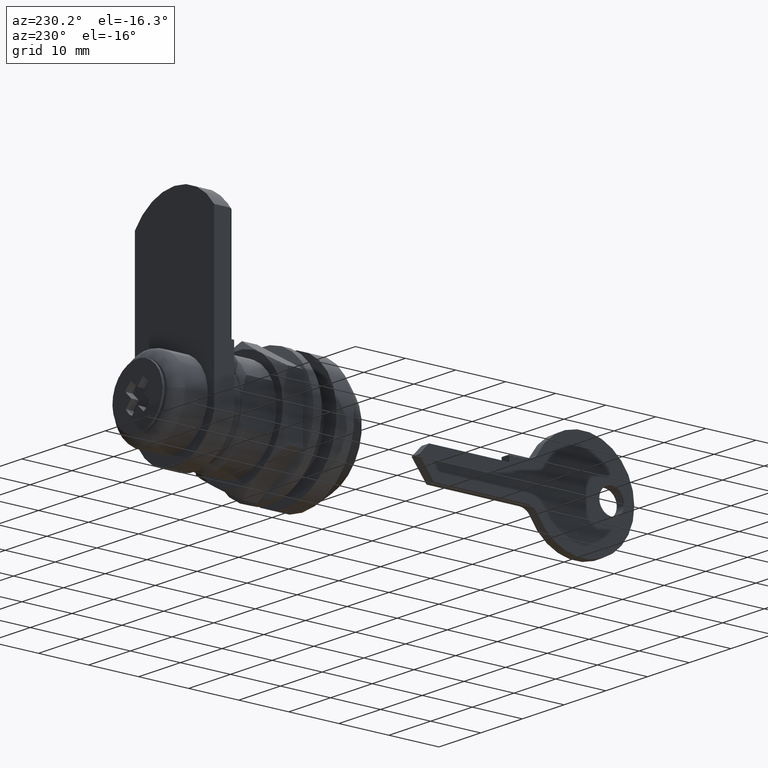
[diagram: clean part render]
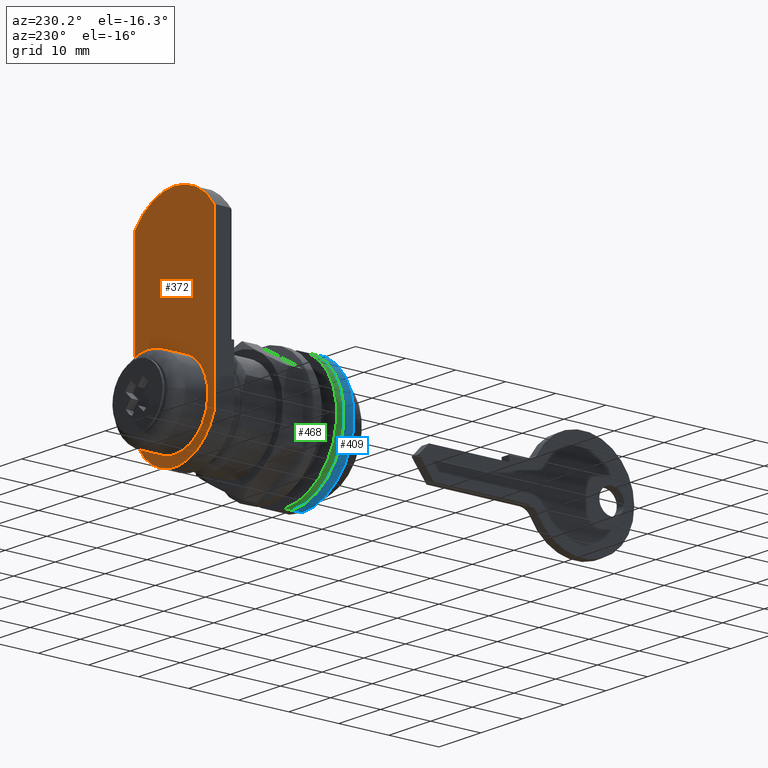
[diagram: same view with three faces highlighted in distinct colors, each labeled with its STEP entity id]
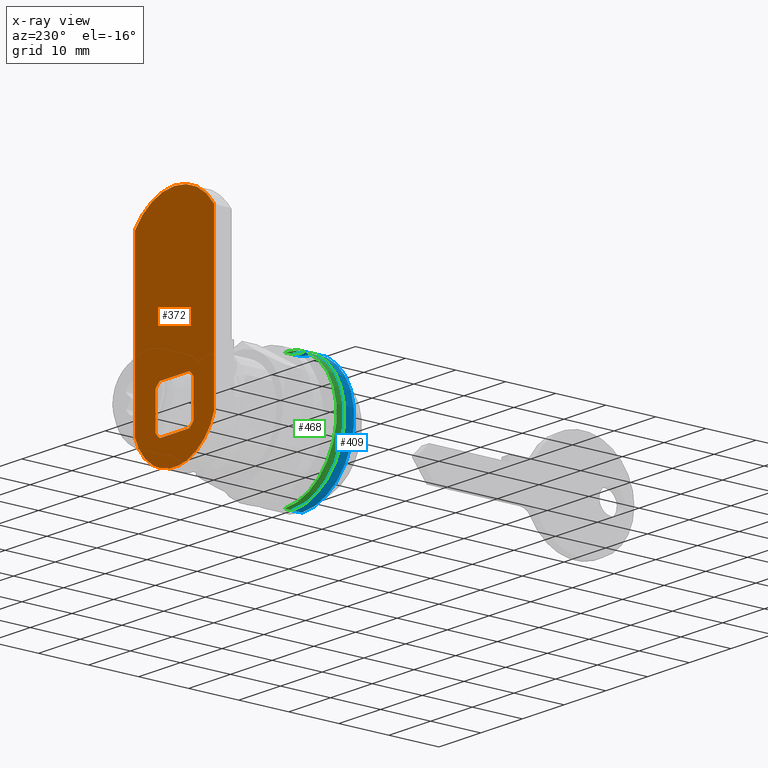
[diagram: x-ray of the same camera — body ghosted, the three highlighted faces saturated]
A machine part, auxiliary view with three faces highlighted in distinct colors.
The next image is the same camera in x-ray (body ghosted, the three faces saturated) — at least one of them is partly hidden behind the body in this view.
Their STEP definitions:

[orange] entity #372 — the highlighted planar face has unit normal (0, -1, 0).
#372=ADVANCED_FACE('',(#528,#529),#527,.F.);
#527=PLANE('',#1987);
#528=FACE_OUTER_BOUND('',#1988,.T.);
#529=FACE_BOUND('',#1989,.T.);
#1984=CARTESIAN_POINT('',(-1.14000000000E+01,4.00000000000E+00,-1.53906618033E+01));
#1985=DIRECTION('',(0.00000000000E+00,-1.00000000000E+00,0.00000000000E+00));
#1986=DIRECTION('',(1.00000000000E+00,0.00000000000E+00,0.00000000000E+00));
#1987=AXIS2_PLACEMENT_3D('',#1984,#1985,#1986);
#1988=EDGE_LOOP('',(#3801,#3802,#3803,#3804));
#1989=EDGE_LOOP('',(#3805,#3806,#3807,#3808,#3809,#3810,#3811,#3812));
#3801=ORIENTED_EDGE('',*,*,#4533,.F.);
#3802=ORIENTED_EDGE('',*,*,#4534,.F.);
#3803=ORIENTED_EDGE('',*,*,#4535,.F.);
#3804=ORIENTED_EDGE('',*,*,#4536,.F.);
#3805=ORIENTED_EDGE('',*,*,#4537,.F.);
#3806=ORIENTED_EDGE('',*,*,#4538,.T.);
#3807=ORIENTED_EDGE('',*,*,#4539,.F.);
#3808=ORIENTED_EDGE('',*,*,#4540,.T.);
#3809=ORIENTED_EDGE('',*,*,#4541,.F.);
#3810=ORIENTED_EDGE('',*,*,#4542,.T.);
#3811=ORIENTED_EDGE('',*,*,#4543,.F.);
#3812=ORIENTED_EDGE('',*,*,#4544,.T.);
#4533=EDGE_CURVE('',#5007,#5008,#5009,.T.);
#4534=EDGE_CURVE('',#5015,#5007,#5016,.T.);
#4535=EDGE_CURVE('',#5022,#5015,#5023,.T.);
#4536=EDGE_CURVE('',#5008,#5022,#5029,.T.);
#4537=EDGE_CURVE('',#5035,#5036,#5037,.T.);
#4538=EDGE_CURVE('',#5035,#5043,#5044,.T.);
#4539=EDGE_CURVE('',#5050,#5043,#5051,.T.);
#4540=EDGE_CURVE('',#5050,#5057,#5058,.T.);
#4541=EDGE_CURVE('',#5064,#5057,#5065,.T.);
#4542=EDGE_CURVE('',#5064,#5071,#5072,.T.);
#4543=EDGE_CURVE('',#5078,#5071,#5079,.T.);
#4544=EDGE_CURVE('',#5078,#5036,#5085,.T.);
#5007=VERTEX_POINT('',#7405);
#5008=VERTEX_POINT('',#7406);
#5009=LINE('',#7407,#7408);
#5015=VERTEX_POINT('',#7410);
#5016=CIRCLE('',#7414,1.00000000000E+01);
#5022=VERTEX_POINT('',#7415);
#5023=LINE('',#7416,#7417);
#5029=CIRCLE('',#7422,1.15000000000E+01);
#5035=VERTEX_POINT('',#7423);
#5036=VERTEX_POINT('',#7424);
#5037=LINE('',#7425,#7426);
#5043=VERTEX_POINT('',#7428);
#5044=CIRCLE('',#7432,5.75000000000E+00);
#5050=VERTEX_POINT('',#7433);
#5051=LINE('',#7434,#7435);
#5057=VERTEX_POINT('',#7437);
#5058=CIRCLE('',#7441,5.75000000000E+00);
#5064=VERTEX_POINT('',#7442);
#5065=LINE('',#7443,#7444);
#5071=VERTEX_POINT('',#7446);
#5072=CIRCLE('',#7450,5.75000000000E+00);
#5078=VERTEX_POINT('',#7451);
#5079=LINE('',#7452,#7453);
#5085=CIRCLE('',#7458,5.75000000000E+00);
#7405=CARTESIAN_POINT('',(9.50000000000E+00,4.00000000000E+00,-3.12249899920E+00));
#7406=CARTESIAN_POINT('',(9.50000000000E+00,4.00000000000E+00,2.99807406984E+01));
#7407=CARTESIAN_POINT('',(9.50000000000E+00,4.00000000000E+00,-3.12249899920E+00));
#7408=VECTOR('',#7409,3.31032396976E+01);
#7409=DIRECTION('',(0.00000000000E+00,0.00000000000E+00,1.00000000000E+00));
#7410=CARTESIAN_POINT('',(-9.50000000000E+00,4.00000000000E+00,-3.12249899920E+00));
#7411=CARTESIAN_POINT('',(0.00000000000E+00,4.00000000000E+00,-1.42108547152E-13));
#7412=DIRECTION('',(0.00000000000E+00,-1.00000000000E+00,-0.00000000000E+00));
#7413=DIRECTION('',(9.50000000000E-01,-0.00000000000E+00,3.12249899920E-01));
#7414=AXIS2_PLACEMENT_3D('',#7411,#7412,#7413);
#7415=CARTESIAN_POINT('',(-9.50000000000E+00,4.00000000000E+00,2.99807406984E+01));
#7416=CARTESIAN_POINT('',(-9.50000000000E+00,4.00000000000E+00,2.99807406984E+01));
#7417=VECTOR('',#7418,3.31032396976E+01);
#7418=DIRECTION('',(0.00000000000E+00,0.00000000000E+00,-1.00000000000E+00));
#7419=CARTESIAN_POINT('',(0.00000000000E+00,4.00000000000E+00,2.35000000000E+01));
#7420=DIRECTION('',(0.00000000000E+00,-1.00000000000E+00,0.00000000000E+00));
#7421=DIRECTION('',(-8.26086956522E-01,-0.00000000000E+00,-5.63542669426E-01));
#7422=AXIS2_PLACEMENT_3D('',#7419,#7420,#7421);
#7423=CARTESIAN_POINT('',(3.51567916625E+00,3.99999999999E+00,-4.55000000000E+00));
#7424=CARTESIAN_POINT('',(-3.51567916625E+00,3.99999999999E+00,-4.55000000000E+00));
#7425=CARTESIAN_POINT('',(3.51567916625E+00,3.99999999999E+00,-4.55000000000E+00));
#7426=VECTOR('',#7427,7.03135833250E+00);
#7427=DIRECTION('',(-1.00000000000E+00,0.00000000000E+00,0.00000000000E+00));
#7428=CARTESIAN_POINT('',(4.55000000000E+00,3.99999999999E+00,-3.51567916625E+00));
#7429=CARTESIAN_POINT('',(0.00000000000E+00,3.99999999999E+00,-1.42108547152E-13));
#7430=DIRECTION('',(0.00000000000E+00,-1.00000000000E+00,0.00000000000E+00));
#7431=DIRECTION('',(-6.11422463696E-01,-0.00000000000E+00,7.91304347826E-01));
#7432=AXIS2_PLACEMENT_3D('',#7429,#7430,#7431);
#7433=CARTESIAN_POINT('',(4.55000000000E+00,3.99999999999E+00,3.51567916625E+00));
#7434=CARTESIAN_POINT('',(4.55000000000E+00,3.99999999999E+00,3.51567916625E+00));
#7435=VECTOR('',#7436,7.03135833250E+00);
#7436=DIRECTION('',(0.00000000000E+00,0.00000000000E+00,-1.00000000000E+00));
#7437=CARTESIAN_POINT('',(3.51567916625E+00,3.99999999999E+00,4.55000000000E+00));
#7438=CARTESIAN_POINT('',(0.00000000000E+00,3.99999999999E+00,-1.42108547152E-13));
#7439=DIRECTION('',(0.00000000000E+00,-1.00000000000E+00,0.00000000000E+00));
#7440=DIRECTION('',(-7.91304347826E-01,-0.00000000000E+00,-6.11422463696E-01));
#7441=AXIS2_PLACEMENT_3D('',#7438,#7439,#7440);
#7442=CARTESIAN_POINT('',(-3.51567916625E+00,3.99999999999E+00,4.55000000000E+00));
#7443=CARTESIAN_POINT('',(-3.51567916625E+00,3.99999999999E+00,4.55000000000E+00));
#7444=VECTOR('',#7445,7.03135833250E+00);
#7445=DIRECTION('',(1.00000000000E+00,0.00000000000E+00,0.00000000000E+00));
#7446=CARTESIAN_POINT('',(-4.55000000000E+00,3.99999999999E+00,3.51567916625E+00));
#7447=CARTESIAN_POINT('',(0.00000000000E+00,3.99999999999E+00,-1.42108547152E-13));
#7448=DIRECTION('',(0.00000000000E+00,-1.00000000000E+00,0.00000000000E+00));
#7449=DIRECTION('',(6.11422463696E-01,-0.00000000000E+00,-7.91304347826E-01));
#7450=AXIS2_PLACEMENT_3D('',#7447,#7448,#7449);
#7451=CARTESIAN_POINT('',(-4.55000000000E+00,3.99999999999E+00,-3.51567916625E+00));
#7452=CARTESIAN_POINT('',(-4.55000000000E+00,3.99999999999E+00,-3.51567916625E+00));
#7453=VECTOR('',#7454,7.03135833250E+00);
#7454=DIRECTION('',(0.00000000000E+00,0.00000000000E+00,1.00000000000E+00));
#7455=CARTESIAN_POINT('',(0.00000000000E+00,3.99999999999E+00,-1.42108547152E-13));
#7456=DIRECTION('',(0.00000000000E+00,-1.00000000000E+00,-0.00000000000E+00));
#7457=DIRECTION('',(7.91304347826E-01,-0.00000000000E+00,6.11422463696E-01));
#7458=AXIS2_PLACEMENT_3D('',#7455,#7456,#7457);

[blue] entity #409 — the highlighted cylindrical surface (partial cylindrical patch) has radius 12.5 mm, axis along (0, 1, 0).
#409=ADVANCED_FACE('',(#903),#902,.T.);
#902=CYLINDRICAL_SURFACE('',#2230,1.25000000000E+01);
#903=FACE_OUTER_BOUND('',#2231,.T.);
#2227=CARTESIAN_POINT('',(-7.65404249467E-16,5.00000000000E+00,0.00000000000E+00));
#2228=DIRECTION('',(0.00000000000E+00,1.00000000000E+00,-0.00000000000E+00));
#2229=DIRECTION('',(6.12323399574E-17,0.00000000000E+00,-1.00000000000E+00));
#2230=AXIS2_PLACEMENT_3D('',#2227,#2228,#2229);
#2231=EDGE_LOOP('',(#3965,#3966,#3967,#3968));
#3965=ORIENTED_EDGE('',*,*,#4588,.T.);
#3966=ORIENTED_EDGE('',*,*,#4614,.F.);
#3967=ORIENTED_EDGE('',*,*,#4610,.F.);
#3968=ORIENTED_EDGE('',*,*,#4615,.T.);
#4588=EDGE_CURVE('',#5367,#5366,#5374,.T.);
#4610=EDGE_CURVE('',#5517,#5518,#5519,.T.);
#4614=EDGE_CURVE('',#5518,#5366,#5543,.T.);
#4615=EDGE_CURVE('',#5517,#5367,#5549,.T.);
#5366=VERTEX_POINT('',#7639);
#5367=VERTEX_POINT('',#7640);
#5374=CIRCLE('',#7648,1.25000000000E+01);
#5517=VERTEX_POINT('',#7749);
#5518=VERTEX_POINT('',#7750);
#5519=CIRCLE('',#7754,1.25000000000E+01);
#5543=(BOUNDED_CURVE() B_SPLINE_CURVE(1,(#7763,#7764),.UNSPECIFIED.,.F.,.F.) B_SPLINE_CURVE_WITH_KNOTS((2,2),(8.33333134656E-02,9.16666653270E-01),.UNSPECIFIED.) CURVE() GEOMETRIC_REPRESENTATION_ITEM() RATIONAL_B_SPLINE_CURVE((1.00000000000E+00,1.00000000000E+00)) REPRESENTATION_ITEM('') );
#5549=(BOUNDED_CURVE() B_SPLINE_CURVE(1,(#7765,#7766),.UNSPECIFIED.,.F.,.F.) B_SPLINE_CURVE_WITH_KNOTS((2,2),(8.33333333333E-02,9.16666666667E-01),.UNSPECIFIED.) CURVE() GEOMETRIC_REPRESENTATION_ITEM() RATIONAL_B_SPLINE_CURVE((7.50000000000E-01,7.50000000000E-01)) REPRESENTATION_ITEM('') );
#7639=CARTESIAN_POINT('',(-2.36847578587E-15,6.00000000000E+00,-1.25000000000E+01));
#7640=CARTESIAN_POINT('',(6.02216117354E-15,6.00000000000E+00,1.25000000000E+01));
#7645=CARTESIAN_POINT('',(7.65404249467E-16,6.00000000000E+00,0.00000000000E+00));
#7646=DIRECTION('',(2.51214793389E-17,-1.00000000000E+00,-7.48820851504E-33));
#7647=DIRECTION('',(2.98079918544E-16,-0.00000000000E+00,1.00000000000E+00));
#7648=AXIS2_PLACEMENT_3D('',#7645,#7646,#7647);
#7749=CARTESIAN_POINT('',(5.32907051820E-15,4.00000000000E+00,1.25000000000E+01));
#7750=CARTESIAN_POINT('',(-6.12308232576E-15,4.00000000000E+00,-1.25000000000E+01));
#7751=CARTESIAN_POINT('',(7.65404249467E-16,4.00000000000E+00,0.00000000000E+00));
#7752=DIRECTION('',(0.00000000000E+00,-1.00000000000E+00,0.00000000000E+00));
#7753=DIRECTION('',(-4.28618290636E-16,-0.00000000000E+00,-1.00000000000E+00));
#7754=AXIS2_PLACEMENT_3D('',#7751,#7752,#7753);
#7763=CARTESIAN_POINT('',(4.99940598684E-28,3.99999995232E+00,-1.25000000000E+01));
#7764=CARTESIAN_POINT('',(4.99940598684E-28,5.99999996785E+00,-1.25000000000E+01));
#7765=CARTESIAN_POINT('',(-5.92118946467E-16,4.00000000000E+00,1.25000000000E+01));
#7766=CARTESIAN_POINT('',(-5.92118946467E-16,6.00000000000E+00,1.25000000000E+01));

[green] entity #468 — the highlighted cylindrical surface (partial cylindrical patch) has radius 12.5 mm, axis along (-0, -1, 0).
#468=ADVANCED_FACE('',(#1503),#1502,.T.);
#1502=CYLINDRICAL_SURFACE('',#3514,1.25000000000E+01);
#1503=FACE_OUTER_BOUND('',#3515,.T.);
#3511=CARTESIAN_POINT('',(7.65404249470E-16,6.75000000000E+00,-2.00971379366E-43));
#3512=DIRECTION('',(-2.51214793389E-17,-1.00000000000E+00,1.53824696311E-33));
#3513=DIRECTION('',(-6.30410864697E-17,4.54383881413E-35,-1.00000000000E+00));
#3514=AXIS2_PLACEMENT_3D('',#3511,#3512,#3513);
#3515=EDGE_LOOP('',(#4267,#4268,#4269,#4270));
#4267=ORIENTED_EDGE('',*,*,#4752,.T.);
#4268=ORIENTED_EDGE('',*,*,#4757,.T.);
#4269=ORIENTED_EDGE('',*,*,#4747,.F.);
#4270=ORIENTED_EDGE('',*,*,#4758,.F.);
#4747=EDGE_CURVE('',#6430,#6431,#6432,.T.);
#4752=EDGE_CURVE('',#6459,#6458,#6466,.T.);
#4757=EDGE_CURVE('',#6458,#6431,#6498,.T.);
#4758=EDGE_CURVE('',#6459,#6430,#6504,.T.);
#6430=VERTEX_POINT('',#8305);
#6431=VERTEX_POINT('',#8306);
#6432=CIRCLE('',#8310,1.25000000000E+01);
#6458=VERTEX_POINT('',#8325);
#6459=VERTEX_POINT('',#8326);
#6466=CIRCLE('',#8334,1.25000000000E+01);
#6498=(BOUNDED_CURVE() B_SPLINE_CURVE(1,(#8349,#8350),.UNSPECIFIED.,.F.,.F.) B_SPLINE_CURVE_WITH_KNOTS((2,2),(8.33333134656E-02,9.16666653270E-01),.UNSPECIFIED.) CURVE() GEOMETRIC_REPRESENTATION_ITEM() RATIONAL_B_SPLINE_CURVE((1.00000000000E+00,1.00000000000E+00)) REPRESENTATION_ITEM('') );
#6504=(BOUNDED_CURVE() B_SPLINE_CURVE(1,(#8351,#8352),.UNSPECIFIED.,.F.,.F.) B_SPLINE_CURVE_WITH_KNOTS((2,2),(8.33333333333E-02,9.16666666667E-01),.UNSPECIFIED.) CURVE() GEOMETRIC_REPRESENTATION_ITEM() RATIONAL_B_SPLINE_CURVE((7.50000000000E-01,7.50000000000E-01)) REPRESENTATION_ITEM('') );
#8305=CARTESIAN_POINT('',(1.53075794227E-15,5.99999999987E+00,1.25000000000E+01));
#8306=CARTESIAN_POINT('',(0.00000000000E+00,5.99999999987E+00,-1.25000000000E+01));
#8307=CARTESIAN_POINT('',(-7.65404249467E-16,5.99999999987E+00,0.00000000000E+00));
#8308=DIRECTION('',(2.51214793389E-17,-1.00000000000E+00,-1.53824696310E-33));
#8309=DIRECTION('',(6.12323399570E-17,-0.00000000000E+00,1.00000000000E+00));
#8310=AXIS2_PLACEMENT_3D('',#8307,#8308,#8309);
#8325=CARTESIAN_POINT('',(1.18423789293E-15,7.49999999987E+00,-1.25000000000E+01));
#8326=CARTESIAN_POINT('',(2.46944749474E-15,7.49999999987E+00,1.25000000000E+01));
#8331=CARTESIAN_POINT('',(7.65404249467E-16,7.49999999987E+00,0.00000000000E+00));
#8332=DIRECTION('',(-5.02429586779E-17,-1.00000000000E+00,6.96509305449E-34));
#8333=DIRECTION('',(1.38628242400E-17,-0.00000000000E+00,1.00000000000E+00));
#8334=AXIS2_PLACEMENT_3D('',#8331,#8332,#8333);
#8349=CARTESIAN_POINT('',(-3.76822100213E-18,7.50000003563E+00,-1.25000000000E+01));
#8350=CARTESIAN_POINT('',(-4.14504403031E-17,6.00000002398E+00,-1.25000000000E+01));
#8351=CARTESIAN_POINT('',(5.92118946467E-16,7.49999999987E+00,1.25000000000E+01));
#8352=CARTESIAN_POINT('',(5.92118946467E-16,5.99999999987E+00,1.25000000000E+01));